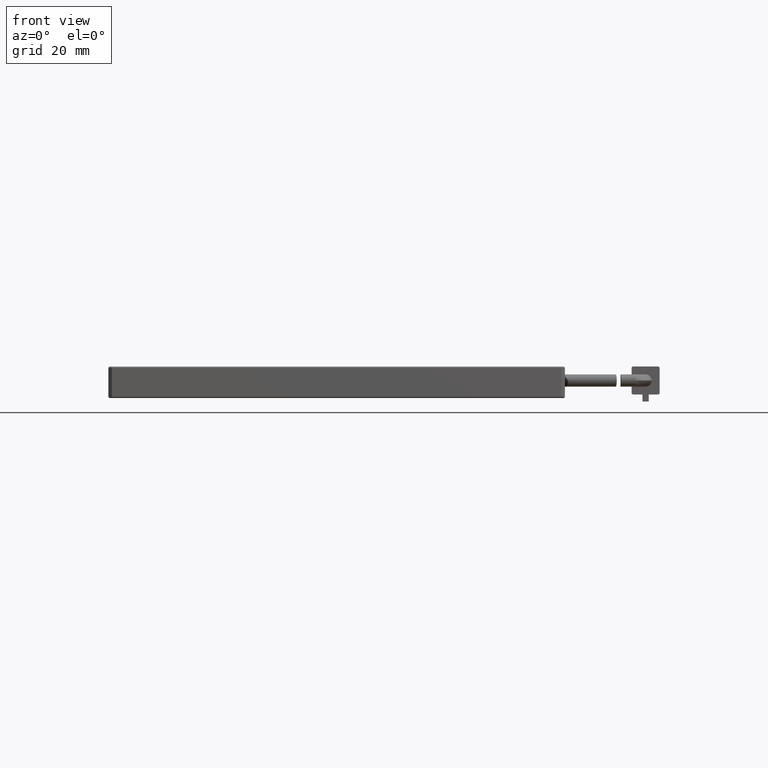
[diagram: clean part render]
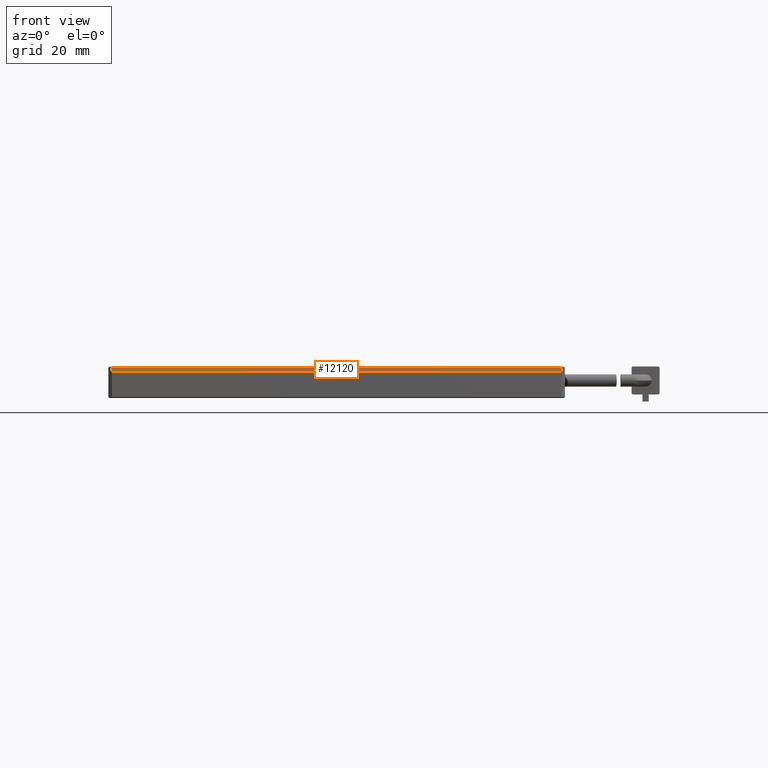
[diagram: same view with one face highlighted and labeled with its STEP entity id]
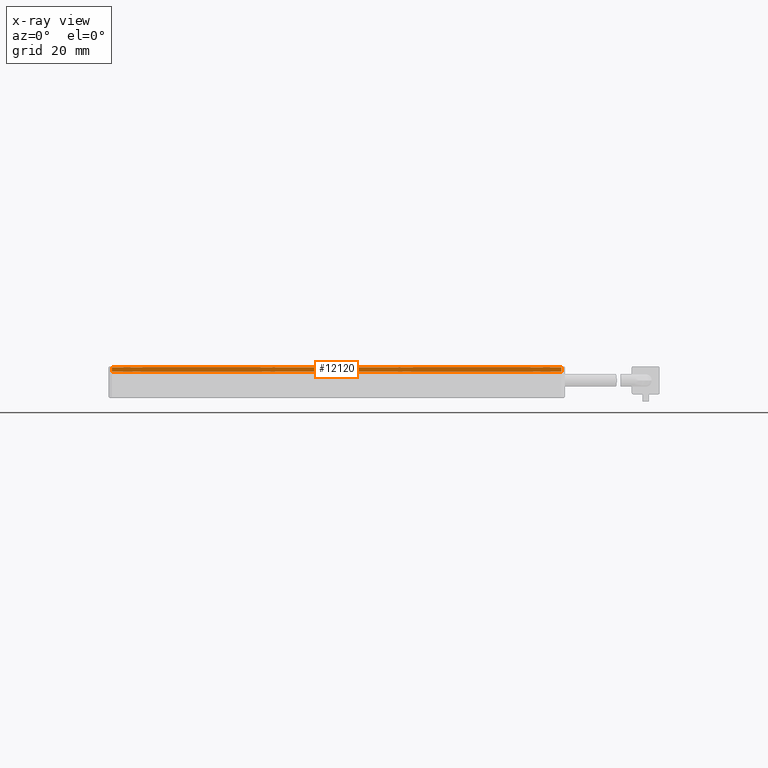
[diagram: x-ray of the same camera — body ghosted, the highlighted face saturated]
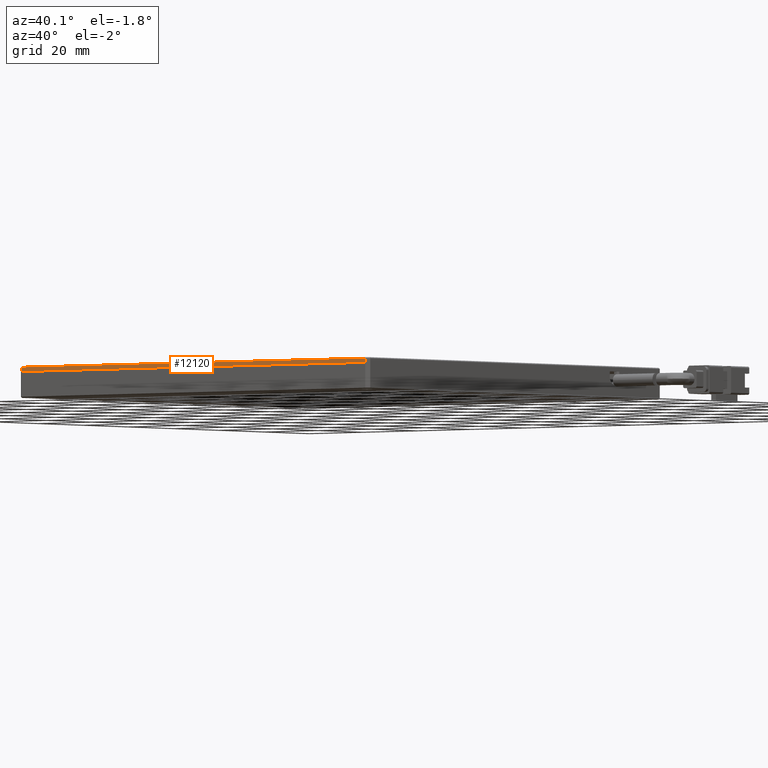
[diagram: same view with one face highlighted and labeled with its STEP entity id]
A machine part, front view. The second image highlights one B-rep face of the part: STEP entity #12120.
The next image is the same camera in x-ray: the body ghosted, the highlighted face saturated — about 0% of this face is hidden behind the body in this view.
A second angle (auxiliary view) of the same face is appended — the face is thin or edge-on in the first view.
In plain terms, the highlighted planar face has unit normal (0, 1, 0).
Its self-contained STEP definition (entity closure, byte-faithful):
#1049 = FACE_OUTER_BOUND ( 'NONE', #4437, .T. ) ;
#1140 = DIRECTION ( 'NONE',  ( 0.0000000000000000000, -0.0000000000000000000, 1.000000000000000000 ) ) ;
#1684 = VECTOR ( 'NONE', #7167, 1000.000000000000000 ) ;
#2115 = VERTEX_POINT ( 'NONE', #15294 ) ;
#2182 = DIRECTION ( 'NONE',  ( 1.000000000000000000, 0.0000000000000000000, -0.0000000000000000000 ) ) ;
#2918 = DIRECTION ( 'NONE',  ( -1.000000000000000000, 0.0000000000000000000, -0.0000000000000000000 ) ) ;
#4423 = DIRECTION ( 'NONE',  ( 0.0000000000000000000, 1.000000000000000000, 0.0000000000000000000 ) ) ;
#4437 = EDGE_LOOP ( 'NONE', ( #17812, #16610, #15899, #7930 ) ) ;
#5878 = DIRECTION ( 'NONE',  ( -0.0000000000000000000, 0.0000000000000000000, -1.000000000000000000 ) ) ;
#6067 = VECTOR ( 'NONE', #5878, 1000.000000000000000 ) ;
#7167 = DIRECTION ( 'NONE',  ( -0.0000000000000000000, 0.0000000000000000000, -1.000000000000000000 ) ) ;
#7813 = VERTEX_POINT ( 'NONE', #19838 ) ;
#7930 = ORIENTED_EDGE ( 'NONE', *, *, #17384, .F. ) ;
#7963 = VERTEX_POINT ( 'NONE', #9585 ) ;
#7980 = VECTOR ( 'NONE', #2182, 1000.000000000000000 ) ;
#8299 = LINE ( 'NONE', #13643, #1684 ) ;
#8804 = EDGE_CURVE ( 'NONE', #7963, #2115, #16601, .T. ) ;
#9075 = CARTESIAN_POINT ( 'NONE',  ( -38.87092592592590300, -40.94055555555552700, 6.000000000000000000 ) ) ;
#9585 = CARTESIAN_POINT ( 'NONE',  ( -37.87092592592589600, -40.94055555555553400, 5.699999999999972600 ) ) ;
#10167 = EDGE_CURVE ( 'NONE', #7963, #12589, #12698, .T. ) ;
#12120 = ADVANCED_FACE ( 'NONE', ( #1049 ), #13698, .F. ) ;
#12168 = EDGE_CURVE ( 'NONE', #7813, #12589, #19440, .T. ) ;
#12589 = VERTEX_POINT ( 'NONE', #14956 ) ;
#12698 = LINE ( 'NONE', #13645, #6067 ) ;
#13643 = CARTESIAN_POINT ( 'NONE',  ( 90.12907407407409700, -40.94055555555552700, 6.000000000000000000 ) ) ;
#13645 = CARTESIAN_POINT ( 'NONE',  ( -37.87092592592590300, -40.94055555555552700, 6.000000000000000000 ) ) ;
#13698 = PLANE ( 'NONE',  #18142 ) ;
#14956 = CARTESIAN_POINT ( 'NONE',  ( -37.87092592592588100, -40.94055555555552700, 4.500000000000000900 ) ) ;
#15246 = VECTOR ( 'NONE', #2918, 1000.000000000000000 ) ;
#15294 = CARTESIAN_POINT ( 'NONE',  ( 90.12907407407409700, -40.94055555555552700, 5.699999999999977100 ) ) ;
#15899 = ORIENTED_EDGE ( 'NONE', *, *, #12168, .F. ) ;
#16601 = LINE ( 'NONE', #17953, #7980 ) ;
#16610 = ORIENTED_EDGE ( 'NONE', *, *, #10167, .T. ) ;
#16770 = CARTESIAN_POINT ( 'NONE',  ( -38.87092592592590300, -40.94055555555552700, 4.500000000000000900 ) ) ;
#17384 = EDGE_CURVE ( 'NONE', #2115, #7813, #8299, .T. ) ;
#17812 = ORIENTED_EDGE ( 'NONE', *, *, #8804, .F. ) ;
#17953 = CARTESIAN_POINT ( 'NONE',  ( -38.87092592592590300, -40.94055555555552700, 5.699999999999967300 ) ) ;
#18142 = AXIS2_PLACEMENT_3D ( 'NONE', #9075, #4423, #1140 ) ;
#19440 = LINE ( 'NONE', #16770, #15246 ) ;
#19838 = CARTESIAN_POINT ( 'NONE',  ( 90.12907407407409700, -40.94055555555552700, 4.500000000000000000 ) ) ;